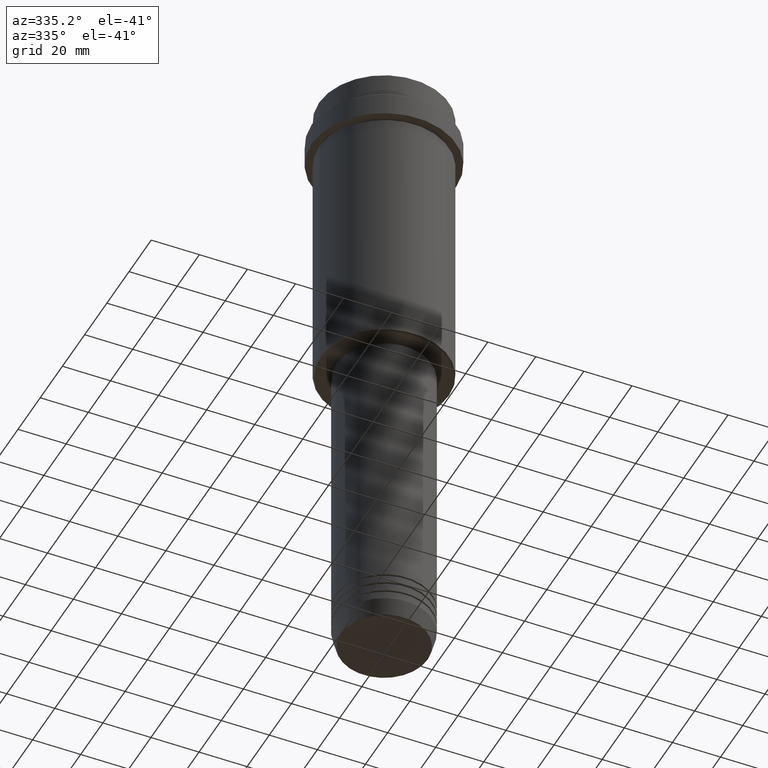
[diagram: clean part render]
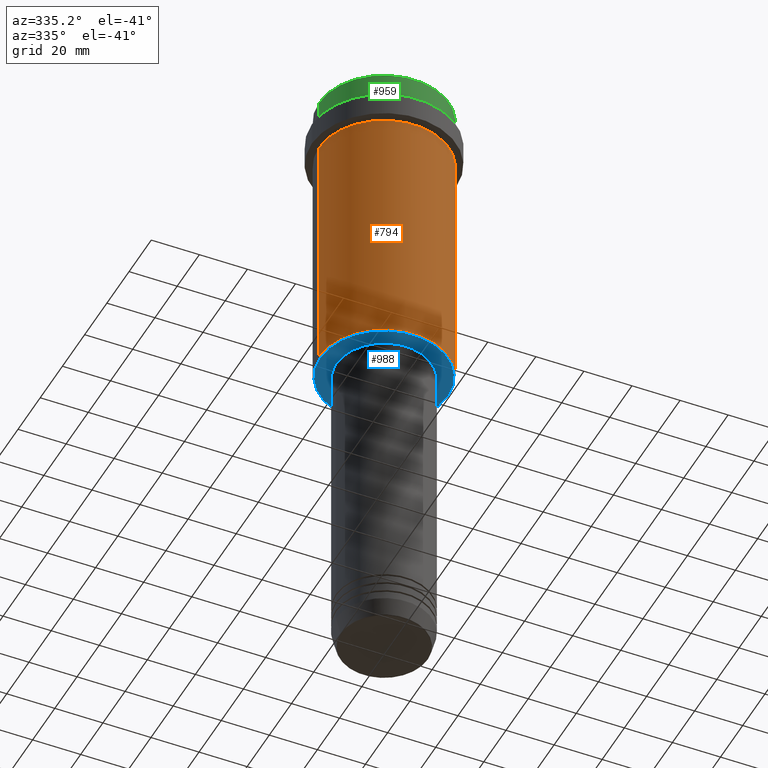
[diagram: same view with three faces highlighted in distinct colors, each labeled with its STEP entity id]
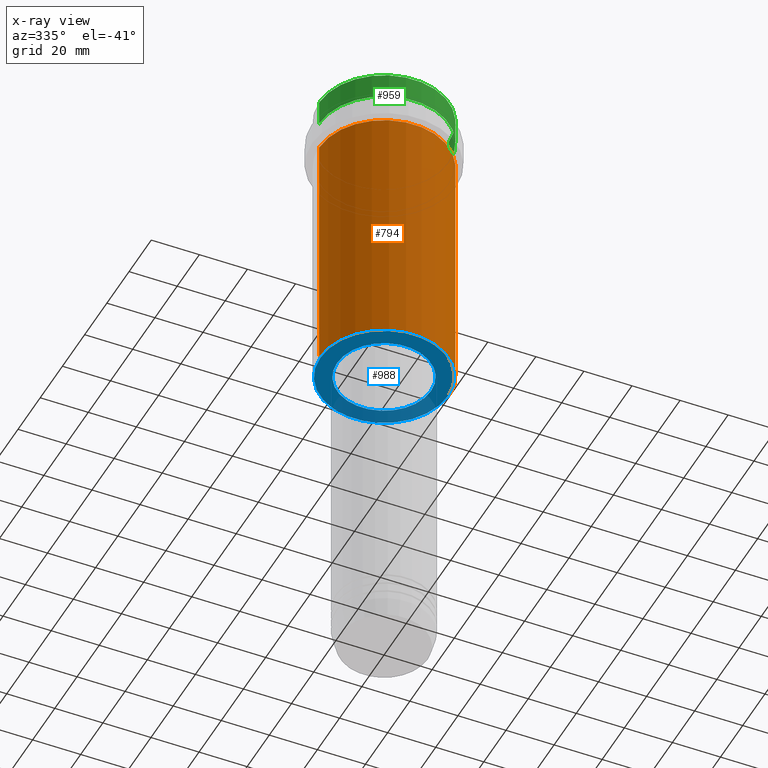
[diagram: x-ray of the same camera — body ghosted, the three highlighted faces saturated]
A machine part, auxiliary view with three faces highlighted in distinct colors.
The next image is the same camera in x-ray (body ghosted, the three faces saturated) — at least one of them is partly hidden behind the body in this view.
Their STEP definitions:

[orange] entity #794 — the highlighted cylindrical surface (partial cylindrical patch) has radius 27 mm, axis along (-0, -0, 1).
#19 = VECTOR ( 'NONE', #326, 1000.000000000000000 ) ;
#98 = EDGE_LOOP ( 'NONE', ( #1351, #596, #180, #734 ) ) ;
#114 = DIRECTION ( 'NONE',  ( -0.000000000000000000, -0.000000000000000000, 1.000000000000000000 ) ) ;
#122 = EDGE_CURVE ( 'NONE', #1233, #1304, #1402, .T. ) ;
#135 = DIRECTION ( 'NONE',  ( -0.000000000000000000, -0.000000000000000000, 1.000000000000000000 ) ) ;
#155 = CYLINDRICAL_SURFACE ( 'NONE', #885, 26.99999999999999645 ) ;
#180 = ORIENTED_EDGE ( 'NONE', *, *, #122, .T. ) ;
#203 = AXIS2_PLACEMENT_3D ( 'NONE', #568, #135, #1307 ) ;
#263 = DIRECTION ( 'NONE',  ( 1.000000000000000000, 0.000000000000000000, 0.000000000000000000 ) ) ;
#280 = EDGE_CURVE ( 'NONE', #1074, #1304, #1334, .T. ) ;
#326 = DIRECTION ( 'NONE',  ( -0.000000000000000000, -0.000000000000000000, 1.000000000000000000 ) ) ;
#332 = CARTESIAN_POINT ( 'NONE',  ( -26.99999999999999645, 3.306546357697853339E-15, -127.5000000000000568 ) ) ;
#568 = CARTESIAN_POINT ( 'NONE',  ( 0.000000000000000000, 0.000000000000000000, -127.5000000000000568 ) ) ;
#596 = ORIENTED_EDGE ( 'NONE', *, *, #1028, .T. ) ;
#637 = EDGE_CURVE ( 'NONE', #720, #1074, #1075, .T. ) ;
#649 = CARTESIAN_POINT ( 'NONE',  ( 26.99999999999999645, 0.000000000000000000, -23.00000000000000000 ) ) ;
#654 = DIRECTION ( 'NONE',  ( -0.000000000000000000, -0.000000000000000000, 1.000000000000000000 ) ) ;
#720 = VERTEX_POINT ( 'NONE', #332 ) ;
#734 = ORIENTED_EDGE ( 'NONE', *, *, #280, .F. ) ;
#751 = AXIS2_PLACEMENT_3D ( 'NONE', #757, #654, #1183 ) ;
#757 = CARTESIAN_POINT ( 'NONE',  ( 0.000000000000000000, 0.000000000000000000, -23.00000000000000000 ) ) ;
#794 = ADVANCED_FACE ( 'NONE', ( #1025 ), #155, .T. ) ;
#803 = CARTESIAN_POINT ( 'NONE',  ( 26.99999999999999645, 0.000000000000000000, -127.5000000000000568 ) ) ;
#885 = AXIS2_PLACEMENT_3D ( 'NONE', #914, #1353, #263 ) ;
#914 = CARTESIAN_POINT ( 'NONE',  ( 0.000000000000000000, 0.000000000000000000, 0.000000000000000000 ) ) ;
#978 = CARTESIAN_POINT ( 'NONE',  ( -26.99999999999999645, 3.306546357697853339E-15, -23.00000000000000000 ) ) ;
#1025 = FACE_OUTER_BOUND ( 'NONE', #98, .T. ) ;
#1028 = EDGE_CURVE ( 'NONE', #720, #1233, #1413, .T. ) ;
#1062 = VECTOR ( 'NONE', #114, 1000.000000000000000 ) ;
#1074 = VERTEX_POINT ( 'NONE', #978 ) ;
#1075 = LINE ( 'NONE', #1182, #1062 ) ;
#1182 = CARTESIAN_POINT ( 'NONE',  ( -26.99999999999999645, 3.306546357697853339E-15, 0.000000000000000000 ) ) ;
#1183 = DIRECTION ( 'NONE',  ( 1.000000000000000000, 0.000000000000000000, 0.000000000000000000 ) ) ;
#1233 = VERTEX_POINT ( 'NONE', #803 ) ;
#1295 = CARTESIAN_POINT ( 'NONE',  ( 26.99999999999999645, 0.000000000000000000, 0.000000000000000000 ) ) ;
#1304 = VERTEX_POINT ( 'NONE', #649 ) ;
#1307 = DIRECTION ( 'NONE',  ( -1.000000000000000000, 0.000000000000000000, 0.000000000000000000 ) ) ;
#1334 = CIRCLE ( 'NONE', #751, 26.99999999999999645 ) ;
#1351 = ORIENTED_EDGE ( 'NONE', *, *, #637, .F. ) ;
#1353 = DIRECTION ( 'NONE',  ( -0.000000000000000000, -0.000000000000000000, 1.000000000000000000 ) ) ;
#1402 = LINE ( 'NONE', #1295, #19 ) ;
#1413 = CIRCLE ( 'NONE', #203, 26.99999999999999645 ) ;

[blue] entity #988 — the highlighted planar face has unit normal (0, 0, -1).
#21 = DIRECTION ( 'NONE',  ( -0.000000000000000000, -0.000000000000000000, 1.000000000000000000 ) ) ;
#27 = DIRECTION ( 'NONE',  ( 1.000000000000000000, 0.000000000000000000, 0.000000000000000000 ) ) ;
#44 = DIRECTION ( 'NONE',  ( -1.000000000000000000, 0.000000000000000000, 0.000000000000000000 ) ) ;
#46 = CARTESIAN_POINT ( 'NONE',  ( 0.000000000000000000, 0.000000000000000000, -128.0000000000000000 ) ) ;
#56 = CARTESIAN_POINT ( 'NONE',  ( 26.50000000000004974, 0.000000000000000000, -128.0000000000000000 ) ) ;
#64 = VERTEX_POINT ( 'NONE', #515 ) ;
#136 = EDGE_LOOP ( 'NONE', ( #372, #1047 ) ) ;
#178 = CIRCLE ( 'NONE', #295, 26.50000000000004974 ) ;
#197 = CIRCLE ( 'NONE', #526, 26.50000000000004974 ) ;
#210 = DIRECTION ( 'NONE',  ( -0.000000000000000000, -0.000000000000000000, 1.000000000000000000 ) ) ;
#230 = EDGE_CURVE ( 'NONE', #553, #64, #1409, .T. ) ;
#295 = AXIS2_PLACEMENT_3D ( 'NONE', #46, #1019, #716 ) ;
#372 = ORIENTED_EDGE ( 'NONE', *, *, #230, .T. ) ;
#410 = FACE_OUTER_BOUND ( 'NONE', #1292, .T. ) ;
#437 = DIRECTION ( 'NONE',  ( 0.000000000000000000, 0.000000000000000000, -1.000000000000000000 ) ) ;
#488 = VERTEX_POINT ( 'NONE', #949 ) ;
#515 = CARTESIAN_POINT ( 'NONE',  ( -19.50000000000000000, 2.388061258337338939E-15, -128.0000000000000000 ) ) ;
#526 = AXIS2_PLACEMENT_3D ( 'NONE', #919, #721, #44 ) ;
#553 = VERTEX_POINT ( 'NONE', #1396 ) ;
#653 = DIRECTION ( 'NONE',  ( 1.000000000000000000, 0.000000000000000000, 0.000000000000000000 ) ) ;
#678 = CARTESIAN_POINT ( 'NONE',  ( 0.000000000000000000, 0.000000000000000000, -128.0000000000000000 ) ) ;
#697 = CARTESIAN_POINT ( 'NONE',  ( 0.000000000000000000, 0.000000000000000000, -128.0000000000000000 ) ) ;
#716 = DIRECTION ( 'NONE',  ( -1.000000000000000000, 0.000000000000000000, 0.000000000000000000 ) ) ;
#721 = DIRECTION ( 'NONE',  ( 0.000000000000000000, 0.000000000000000000, -1.000000000000000000 ) ) ;
#736 = EDGE_CURVE ( 'NONE', #64, #553, #1037, .T. ) ;
#830 = EDGE_CURVE ( 'NONE', #488, #844, #178, .T. ) ;
#844 = VERTEX_POINT ( 'NONE', #56 ) ;
#919 = CARTESIAN_POINT ( 'NONE',  ( 0.000000000000000000, 0.000000000000000000, -128.0000000000000000 ) ) ;
#949 = CARTESIAN_POINT ( 'NONE',  ( -26.50000000000004974, 3.275930187719172707E-15, -128.0000000000000000 ) ) ;
#957 = DIRECTION ( 'NONE',  ( -1.000000000000000000, 0.000000000000000000, -0.000000000000000000 ) ) ;
#966 = AXIS2_PLACEMENT_3D ( 'NONE', #678, #21, #27 ) ;
#972 = FACE_BOUND ( 'NONE', #136, .T. ) ;
#988 = ADVANCED_FACE ( 'NONE', ( #410, #972 ), #1417, .T. ) ;
#989 = ORIENTED_EDGE ( 'NONE', *, *, #1168, .T. ) ;
#1019 = DIRECTION ( 'NONE',  ( 0.000000000000000000, 0.000000000000000000, -1.000000000000000000 ) ) ;
#1037 = CIRCLE ( 'NONE', #1389, 19.50000000000000000 ) ;
#1047 = ORIENTED_EDGE ( 'NONE', *, *, #736, .T. ) ;
#1066 = CARTESIAN_POINT ( 'NONE',  ( 0.000000000000000000, 27.00000000000000000, -128.0000000000000000 ) ) ;
#1168 = EDGE_CURVE ( 'NONE', #844, #488, #197, .T. ) ;
#1239 = AXIS2_PLACEMENT_3D ( 'NONE', #1066, #437, #957 ) ;
#1292 = EDGE_LOOP ( 'NONE', ( #989, #1381 ) ) ;
#1381 = ORIENTED_EDGE ( 'NONE', *, *, #830, .T. ) ;
#1389 = AXIS2_PLACEMENT_3D ( 'NONE', #697, #210, #653 ) ;
#1396 = CARTESIAN_POINT ( 'NONE',  ( 19.50000000000000000, 0.000000000000000000, -128.0000000000000000 ) ) ;
#1409 = CIRCLE ( 'NONE', #966, 19.50000000000000000 ) ;
#1417 = PLANE ( 'NONE',  #1239 ) ;

[green] entity #959 — the highlighted cylindrical surface (partial cylindrical patch) has radius 27 mm, axis along (-0, -0, 1).
#49 = CARTESIAN_POINT ( 'NONE',  ( 26.99999999999999645, 0.000000000000000000, -0.5000000000000038858 ) ) ;
#76 = CARTESIAN_POINT ( 'NONE',  ( -26.99999999999999645, 3.306546357697853339E-15, 0.000000000000000000 ) ) ;
#80 = LINE ( 'NONE', #1276, #1388 ) ;
#104 = DIRECTION ( 'NONE',  ( 0.000000000000000000, 0.000000000000000000, -1.000000000000000000 ) ) ;
#224 = VERTEX_POINT ( 'NONE', #1085 ) ;
#252 = CARTESIAN_POINT ( 'NONE',  ( 0.000000000000000000, 0.000000000000000000, -11.00000000000000178 ) ) ;
#311 = DIRECTION ( 'NONE',  ( 1.000000000000000000, 0.000000000000000000, 0.000000000000000000 ) ) ;
#349 = VERTEX_POINT ( 'NONE', #49 ) ;
#409 = CIRCLE ( 'NONE', #1201, 26.99999999999999645 ) ;
#433 = CYLINDRICAL_SURFACE ( 'NONE', #815, 26.99999999999999645 ) ;
#444 = EDGE_LOOP ( 'NONE', ( #606, #1030, #690, #1400 ) ) ;
#535 = DIRECTION ( 'NONE',  ( -0.000000000000000000, -0.000000000000000000, 1.000000000000000000 ) ) ;
#589 = DIRECTION ( 'NONE',  ( 1.000000000000000000, 0.000000000000000000, 0.000000000000000000 ) ) ;
#606 = ORIENTED_EDGE ( 'NONE', *, *, #1002, .F. ) ;
#681 = AXIS2_PLACEMENT_3D ( 'NONE', #252, #696, #589 ) ;
#690 = ORIENTED_EDGE ( 'NONE', *, *, #1404, .T. ) ;
#696 = DIRECTION ( 'NONE',  ( -0.000000000000000000, -0.000000000000000000, 1.000000000000000000 ) ) ;
#754 = FACE_OUTER_BOUND ( 'NONE', #444, .T. ) ;
#815 = AXIS2_PLACEMENT_3D ( 'NONE', #1288, #1405, #311 ) ;
#943 = DIRECTION ( 'NONE',  ( 1.000000000000000000, 0.000000000000000000, 0.000000000000000000 ) ) ;
#959 = ADVANCED_FACE ( 'NONE', ( #754 ), #433, .T. ) ;
#962 = CARTESIAN_POINT ( 'NONE',  ( 0.000000000000000000, 0.000000000000000000, -0.5000000000000038858 ) ) ;
#971 = EDGE_CURVE ( 'NONE', #349, #1249, #409, .T. ) ;
#982 = VERTEX_POINT ( 'NONE', #1169 ) ;
#1002 = EDGE_CURVE ( 'NONE', #224, #1249, #1051, .T. ) ;
#1030 = ORIENTED_EDGE ( 'NONE', *, *, #1270, .T. ) ;
#1051 = LINE ( 'NONE', #76, #1123 ) ;
#1085 = CARTESIAN_POINT ( 'NONE',  ( -26.99999999999999645, 3.306546357697853339E-15, -11.00000000000000178 ) ) ;
#1119 = CARTESIAN_POINT ( 'NONE',  ( -26.99999999999999645, 3.306546357697853339E-15, -0.5000000000000038858 ) ) ;
#1123 = VECTOR ( 'NONE', #1164, 1000.000000000000000 ) ;
#1127 = CIRCLE ( 'NONE', #681, 26.99999999999999645 ) ;
#1164 = DIRECTION ( 'NONE',  ( -0.000000000000000000, -0.000000000000000000, 1.000000000000000000 ) ) ;
#1169 = CARTESIAN_POINT ( 'NONE',  ( 26.99999999999999645, 0.000000000000000000, -11.00000000000000178 ) ) ;
#1201 = AXIS2_PLACEMENT_3D ( 'NONE', #962, #104, #943 ) ;
#1249 = VERTEX_POINT ( 'NONE', #1119 ) ;
#1270 = EDGE_CURVE ( 'NONE', #224, #982, #1127, .T. ) ;
#1276 = CARTESIAN_POINT ( 'NONE',  ( 26.99999999999999645, 0.000000000000000000, 0.000000000000000000 ) ) ;
#1288 = CARTESIAN_POINT ( 'NONE',  ( 0.000000000000000000, 0.000000000000000000, 0.000000000000000000 ) ) ;
#1388 = VECTOR ( 'NONE', #535, 1000.000000000000000 ) ;
#1400 = ORIENTED_EDGE ( 'NONE', *, *, #971, .T. ) ;
#1404 = EDGE_CURVE ( 'NONE', #982, #349, #80, .T. ) ;
#1405 = DIRECTION ( 'NONE',  ( -0.000000000000000000, -0.000000000000000000, 1.000000000000000000 ) ) ;